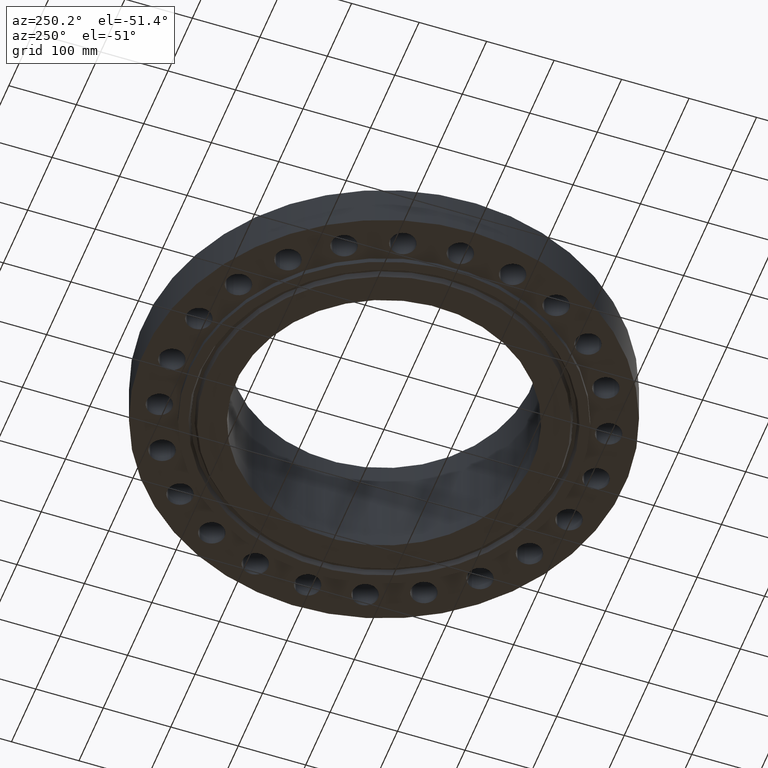
[diagram: clean part render]
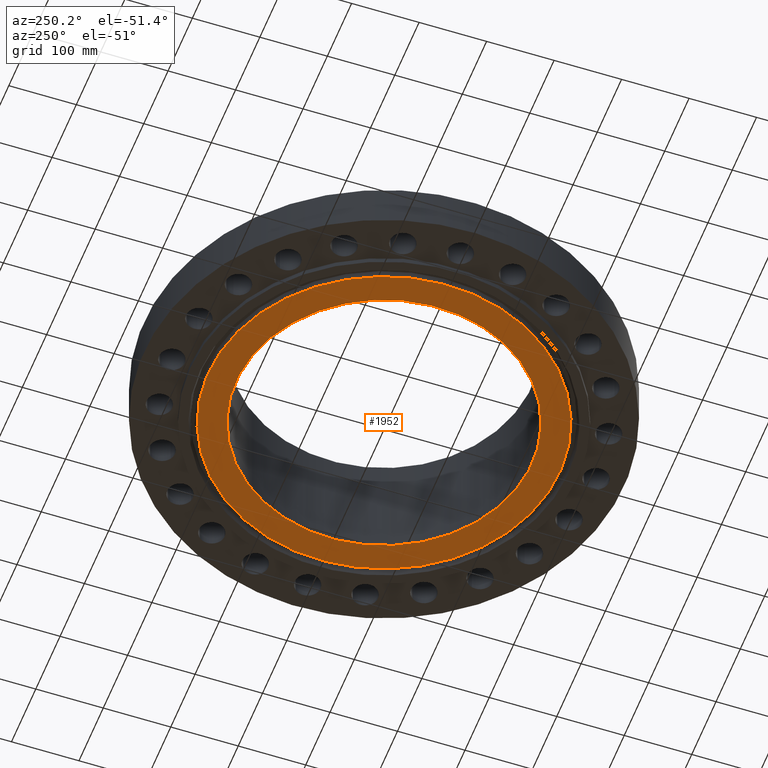
[diagram: same view with one face highlighted and labeled with its STEP entity id]
A machine part, auxiliary view. The second image highlights one B-rep face of the part: STEP entity #1952.
In plain terms, the highlighted planar face has unit normal (0, 0, -1).
Its self-contained STEP definition (entity closure, byte-faithful):
#363=AXIS2_PLACEMENT_3D('Circle Axis2P3D',#361,#362,$) ;
#387=AXIS2_PLACEMENT_3D('Circle Axis2P3D',#385,#386,$) ;
#1905=AXIS2_PLACEMENT_3D('Plane Axis2P3D',#1902,#1903,#1904) ;
#1932=AXIS2_PLACEMENT_3D('Circle Axis2P3D',#1930,#1931,$) ;
#1941=AXIS2_PLACEMENT_3D('Circle Axis2P3D',#1939,#1940,$) ;
#358=CARTESIAN_POINT('Vertex',(4.13504527048,7.56914959633,-0.313000000001)) ;
#361=CARTESIAN_POINT('Axis2P3D Location',(0.,0.,-0.313000000001)) ;
#365=CARTESIAN_POINT('Vertex',(-4.13504527048,-7.56914959633,-0.313000000001)) ;
#385=CARTESIAN_POINT('Axis2P3D Location',(0.,0.,-0.313000000001)) ;
#1902=CARTESIAN_POINT('Axis2P3D Location',(0.,8.62500000003,-0.313000000001)) ;
#1930=CARTESIAN_POINT('Axis2P3D Location',(1.1189649382E-015,1.1189649382E-015,-0.313000000001)) ;
#1934=CARTESIAN_POINT('Vertex',(-4.92154286656,9.00882378912,-0.313000000001)) ;
#1936=CARTESIAN_POINT('Vertex',(4.92154286656,-9.00882378912,-0.313000000001)) ;
#1939=CARTESIAN_POINT('Axis2P3D Location',(-1.1189649382E-015,1.1189649382E-015,-0.313000000001)) ;
#362=DIRECTION('Axis2P3D Direction',(0.,0.,-0.0393700787402)) ;
#386=DIRECTION('Axis2P3D Direction',(0.,0.,-0.0393700787402)) ;
#1903=DIRECTION('Axis2P3D Direction',(0.,0.,-0.0393700787402)) ;
#1904=DIRECTION('Axis2P3D XDirection',(0.0393700787402,0.,0.)) ;
#1931=DIRECTION('Axis2P3D Direction',(0.,0.,-0.0393700787402)) ;
#1940=DIRECTION('Axis2P3D Direction',(0.,0.,-0.0393700787402)) ;
#1945=ORIENTED_EDGE('',*,*,#1938,.T.) ;
#1946=ORIENTED_EDGE('',*,*,#1943,.T.) ;
#1949=ORIENTED_EDGE('',*,*,#367,.F.) ;
#1950=ORIENTED_EDGE('',*,*,#389,.F.) ;
#1951=FACE_BOUND('',#1948,.T.) ;
#1952=ADVANCED_FACE('PartBody',(#1947,#1951),#1906,.T.) ;
#364=CIRCLE('generated circle',#363,8.62500000003) ;
#388=CIRCLE('generated circle',#387,8.62500000003) ;
#1933=CIRCLE('generated circle',#1932,10.2655) ;
#1942=CIRCLE('generated circle',#1941,10.2655) ;
#367=EDGE_CURVE('',#359,#366,#364,.T.) ;
#389=EDGE_CURVE('',#366,#359,#388,.T.) ;
#1938=EDGE_CURVE('',#1935,#1937,#1933,.T.) ;
#1943=EDGE_CURVE('',#1937,#1935,#1942,.T.) ;
#1944=EDGE_LOOP('',(#1945,#1946)) ;
#1948=EDGE_LOOP('',(#1949,#1950)) ;
#1947=FACE_OUTER_BOUND('',#1944,.T.) ;
#1906=PLANE('',#1905) ;
#359=VERTEX_POINT('',#358) ;
#366=VERTEX_POINT('',#365) ;
#1935=VERTEX_POINT('',#1934) ;
#1937=VERTEX_POINT('',#1936) ;